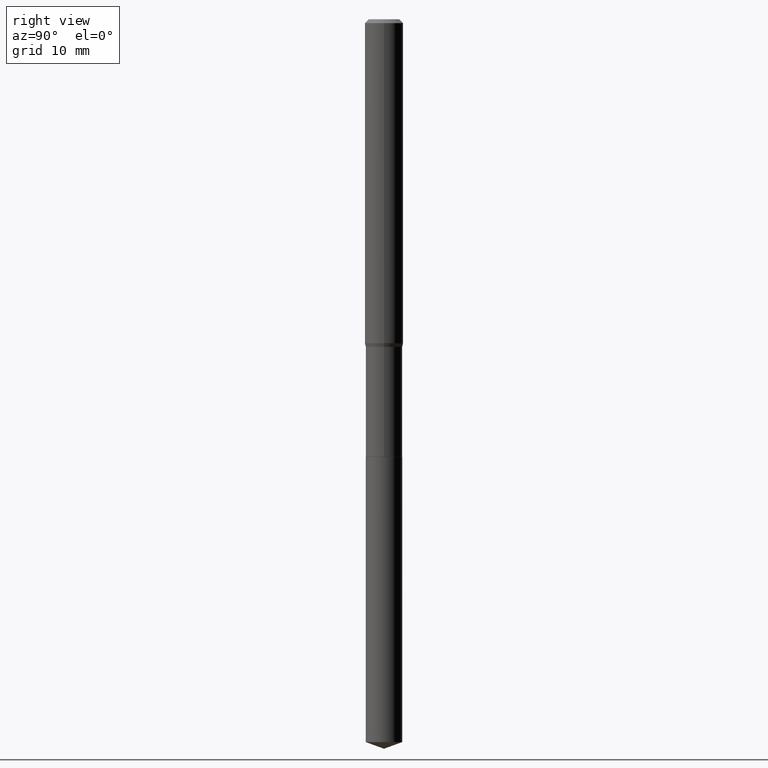
[diagram: clean part render]
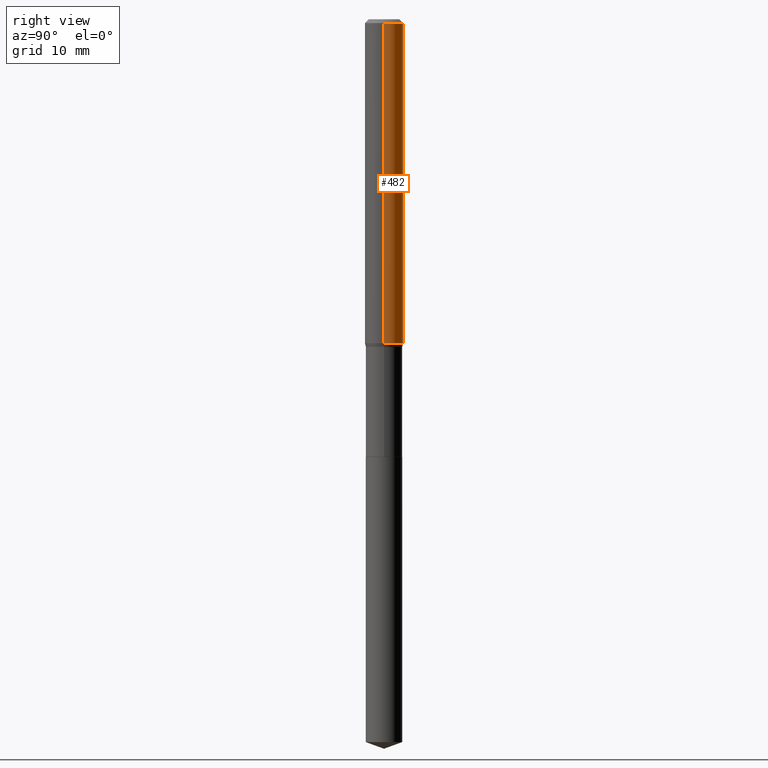
[diagram: same view with one face highlighted and labeled with its STEP entity id]
A machine part, right view. The second image highlights one B-rep face of the part: STEP entity #482.
In plain terms, the highlighted cylindrical surface (edge-blend (fillet) strip) has radius 2.0003 mm, axis along (-0, 0, 1).
Its self-contained STEP definition (entity closure, byte-faithful):
#6 = CIRCLE ( 'NONE', #70, 0.07875000000000001443 ) ;
#19 = LINE ( 'NONE', #385, #92 ) ;
#54 = VERTEX_POINT ( 'NONE', #423 ) ;
#70 = AXIS2_PLACEMENT_3D ( 'NONE', #288, #220, #440 ) ;
#73 = ORIENTED_EDGE ( 'NONE', *, *, #427, .F. ) ;
#77 = ORIENTED_EDGE ( 'NONE', *, *, #316, .F. ) ;
#92 = VECTOR ( 'NONE', #161, 39.37007874015748143 ) ;
#109 = CIRCLE ( 'NONE', #132, 0.07875000000000016709 ) ;
#132 = AXIS2_PLACEMENT_3D ( 'NONE', #190, #379, #271 ) ;
#133 = VERTEX_POINT ( 'NONE', #284 ) ;
#151 = CYLINDRICAL_SURFACE ( 'NONE', #402, 0.07875000000000008382 ) ;
#161 = DIRECTION ( 'NONE',  ( -2.445468806185136877E-29, 3.491481338843145188E-15, 1.000000000000000000 ) ) ;
#163 = LINE ( 'NONE', #468, #425 ) ;
#189 = FACE_OUTER_BOUND ( 'NONE', #229, .T. ) ;
#190 = CARTESIAN_POINT ( 'NONE',  ( 3.249926310230585546E-29, -4.640033451290079413E-15, -1.328958399310102179 ) ) ;
#191 = ORIENTED_EDGE ( 'NONE', *, *, #257, .T. ) ;
#204 = VERTEX_POINT ( 'NONE', #446 ) ;
#214 = CARTESIAN_POINT ( 'NONE',  ( -0.07875000000000001443, -1.787959736777349389E-15, -0.01575000000000011460 ) ) ;
#220 = DIRECTION ( 'NONE',  ( -2.445468806185136597E-29, 3.491481338843145583E-15, 1.000000000000000000 ) ) ;
#229 = EDGE_LOOP ( 'NONE', ( #460, #191, #73, #77 ) ) ;
#257 = EDGE_CURVE ( 'NONE', #204, #456, #19, .T. ) ;
#271 = DIRECTION ( 'NONE',  ( 1.000000000000000000, -6.982962677686271444E-15, 0.000000000000000000 ) ) ;
#284 = CARTESIAN_POINT ( 'NONE',  ( 0.07875000000000001443, -6.048991419545735677E-16, -0.01575000000000011460 ) ) ;
#286 = EDGE_CURVE ( 'NONE', #54, #204, #109, .T. ) ;
#288 = CARTESIAN_POINT ( 'NONE',  ( 3.851613369741618303E-31, -5.499083108677994470E-17, -0.01575000000000011460 ) ) ;
#316 = EDGE_CURVE ( 'NONE', #54, #133, #163, .T. ) ;
#332 = CARTESIAN_POINT ( 'NONE',  ( 0.000000000000000000, 0.000000000000000000, 0.000000000000000000 ) ) ;
#369 = DIRECTION ( 'NONE',  ( 1.000000000000000000, -6.982962677686267499E-15, 4.876176775795935232E-29 ) ) ;
#371 = DIRECTION ( 'NONE',  ( -2.445468806185136877E-29, 3.491481338843145188E-15, 1.000000000000000000 ) ) ;
#379 = DIRECTION ( 'NONE',  ( -2.445468806185136597E-29, 3.491481338843145583E-15, 1.000000000000000000 ) ) ;
#385 = CARTESIAN_POINT ( 'NONE',  ( -0.07875000000000008382, 5.595524044110794920E-16, -3.873661383575742696E-30 ) ) ;
#402 = AXIS2_PLACEMENT_3D ( 'NONE', #332, #417, #369 ) ;
#417 = DIRECTION ( 'NONE',  ( -2.445468806185136597E-29, 3.491481338843145583E-15, 1.000000000000000000 ) ) ;
#423 = CARTESIAN_POINT ( 'NONE',  ( 0.07875000000000016709, -5.189941762157874337E-15, -1.328958399310102179 ) ) ;
#425 = VECTOR ( 'NONE', #371, 39.37007874015748143 ) ;
#427 = EDGE_CURVE ( 'NONE', #133, #456, #6, .T. ) ;
#440 = DIRECTION ( 'NONE',  ( 1.000000000000000000, -6.982962677686267499E-15, 0.000000000000000000 ) ) ;
#446 = CARTESIAN_POINT ( 'NONE',  ( -0.07875000000000016709, -4.080481046878999034E-15, -1.328958399310102179 ) ) ;
#456 = VERTEX_POINT ( 'NONE', #214 ) ;
#460 = ORIENTED_EDGE ( 'NONE', *, *, #286, .T. ) ;
#468 = CARTESIAN_POINT ( 'NONE',  ( 0.07875000000000008382, -5.499083108677941345E-16, 3.839989210939303220E-30 ) ) ;
#482 = ADVANCED_FACE ( 'NONE', ( #189 ), #151, .T. ) ;